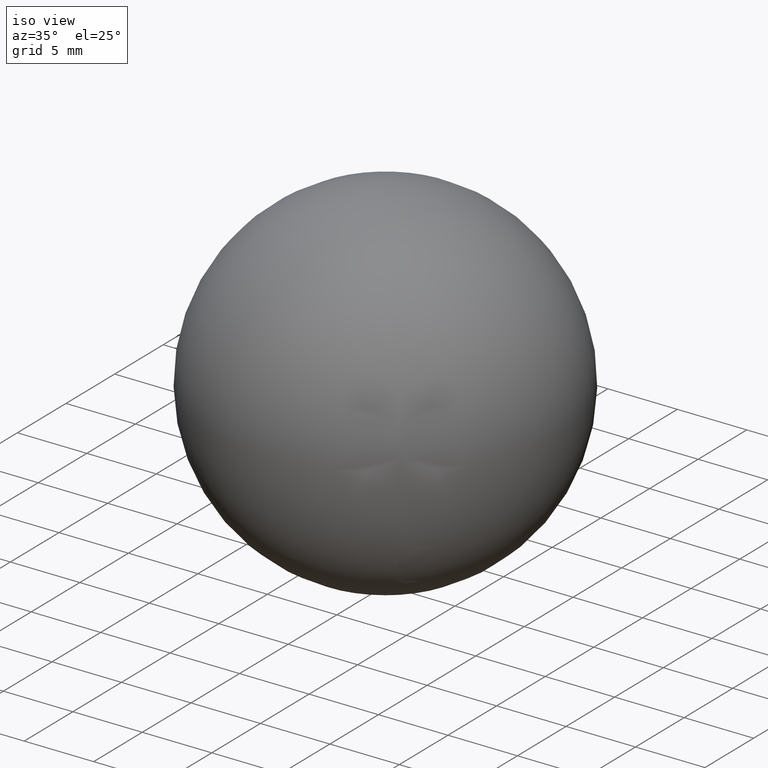
[diagram: clean part render]
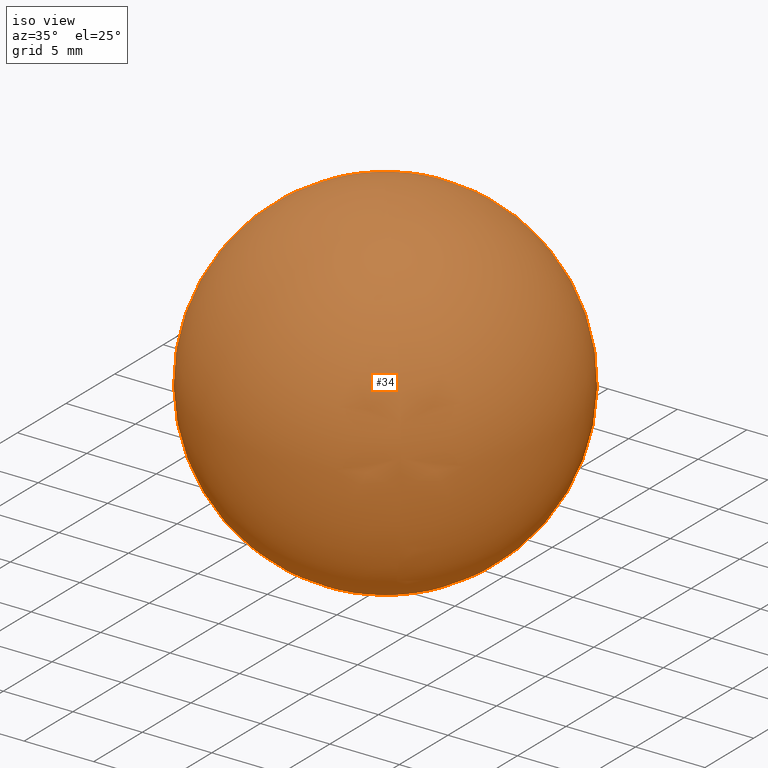
[diagram: same view with one face highlighted and labeled with its STEP entity id]
A machine part, iso view. The second image highlights one B-rep face of the part: STEP entity #34.
In plain terms, the highlighted spherical surface has radius 12.5 mm.
Its self-contained STEP definition (entity closure, byte-faithful):
#6 = ORIENTED_EDGE ( 'NONE', *, *, #30, .F. ) ;
#9 = CARTESIAN_POINT ( 'NONE',  ( 0.000000000000000000, 12.24744871391589207, -2.499999999999992895 ) ) ;
#11 = CARTESIAN_POINT ( 'NONE',  ( 0.000000000000000000, 0.000000000000000000, 0.000000000000000000 ) ) ;
#12 = CARTESIAN_POINT ( 'NONE',  ( 0.000000000000000000, 12.24744871391589207, 0.000000000000000000 ) ) ;
#22 = DIRECTION ( 'NONE',  ( 0.000000000000000000, 0.000000000000000000, -1.000000000000000000 ) ) ;
#28 = VERTEX_POINT ( 'NONE', #9 ) ;
#30 = EDGE_CURVE ( 'NONE', #28, #28, #40, .T. ) ;
#31 = AXIS2_PLACEMENT_3D ( 'NONE', #11, #55, #66 ) ;
#34 = ADVANCED_FACE ( 'NONE', ( #104 ), #111, .T. ) ;
#40 = CIRCLE ( 'NONE', #128, 2.499999999999992895 ) ;
#41 = EDGE_LOOP ( 'NONE', ( #6 ) ) ;
#50 = DIRECTION ( 'NONE',  ( -0.000000000000000000, 1.000000000000000000, -0.000000000000000000 ) ) ;
#55 = DIRECTION ( 'NONE',  ( -0.000000000000000000, -0.000000000000000000, -1.000000000000000000 ) ) ;
#66 = DIRECTION ( 'NONE',  ( -1.000000000000000000, 0.000000000000000000, 0.000000000000000000 ) ) ;
#104 = FACE_OUTER_BOUND ( 'NONE', #41, .T. ) ;
#111 = SPHERICAL_SURFACE ( 'NONE', #31, 12.50000000000000000 ) ;
#128 = AXIS2_PLACEMENT_3D ( 'NONE', #12, #50, #22 ) ;